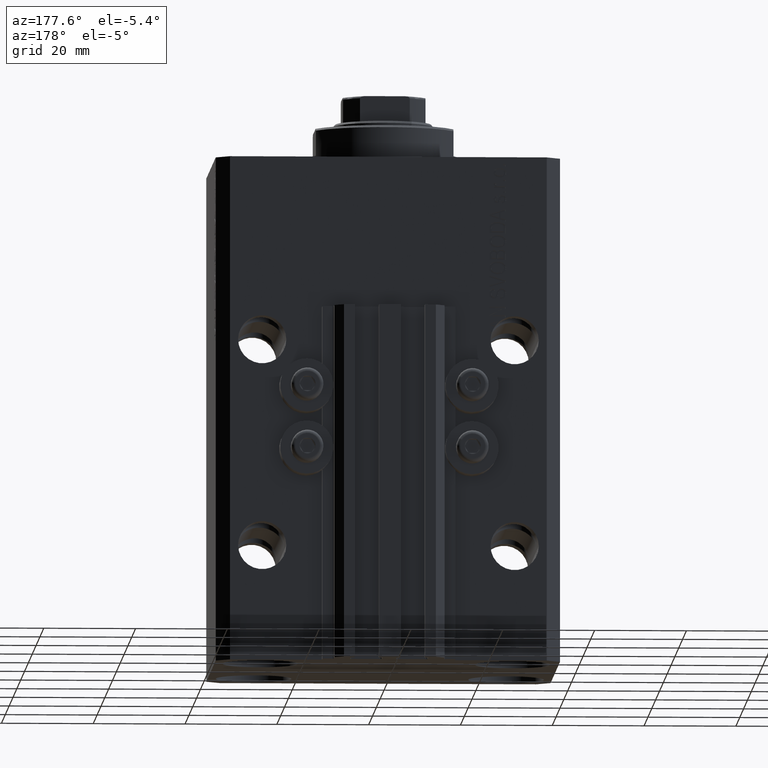
[diagram: clean part render]
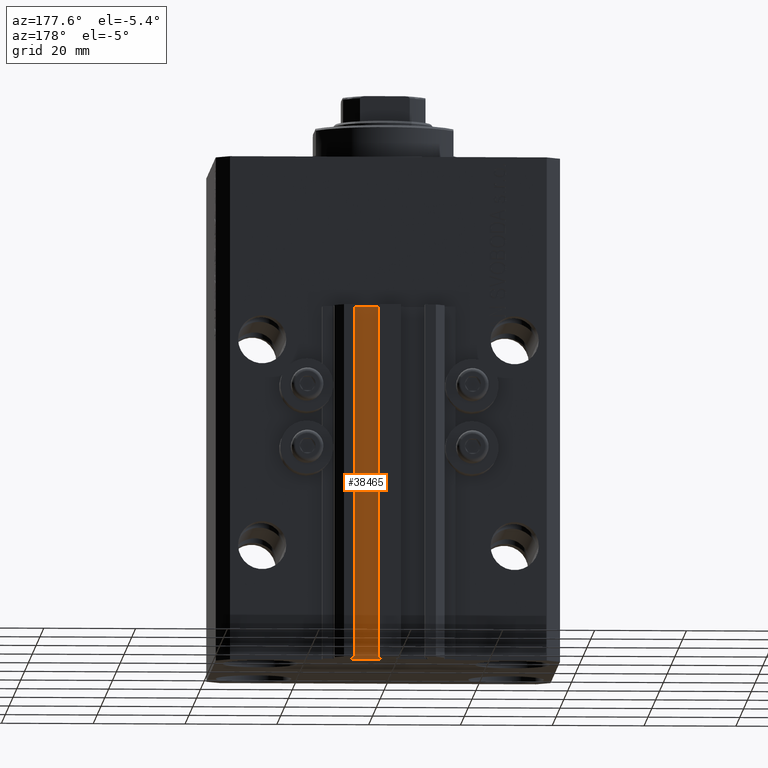
[diagram: same view with one face highlighted and labeled with its STEP entity id]
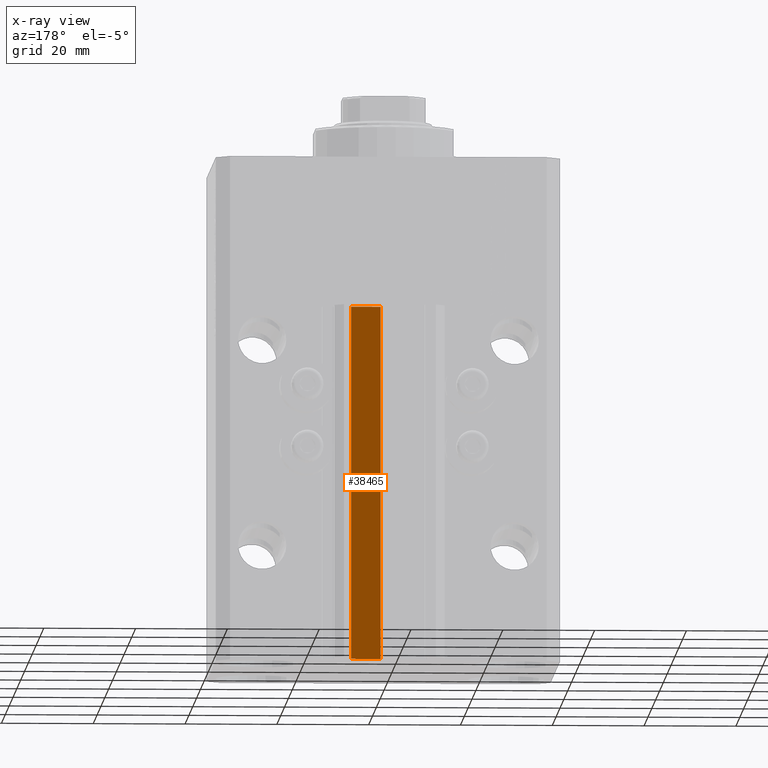
[diagram: x-ray of the same camera — body ghosted, the highlighted face saturated]
A machine part, auxiliary view. The second image highlights one B-rep face of the part: STEP entity #38465.
The next image is the same camera in x-ray: the body ghosted, the highlighted face saturated — about 0% of this face is hidden behind the body in this view.
In plain terms, the highlighted planar face has unit normal (-0, 1, 0).
Its self-contained STEP definition (entity closure, byte-faithful):
#92 = CARTESIAN_POINT ( 'NONE',  ( 8.199999999999999289, 29.50000000000000711, -110.0000000000000000 ) ) ;
#190 = ORIENTED_EDGE ( 'NONE', *, *, #28475, .F. ) ;
#1042 = CARTESIAN_POINT ( 'NONE',  ( 1.800000000000000933, 29.50000000000000000, -110.0000000000000000 ) ) ;
#4437 = CARTESIAN_POINT ( 'NONE',  ( 8.199999999999999289, 29.50000000000000711, -110.0000000000000000 ) ) ;
#5440 = LINE ( 'NONE', #22501, #34141 ) ;
#7524 = LINE ( 'NONE', #92, #14929 ) ;
#7820 = DIRECTION ( 'NONE',  ( -1.000000000000000000, -1.084202172485504828E-15, 0.000000000000000000 ) ) ;
#8803 = DIRECTION ( 'NONE',  ( 0.000000000000000000, 0.000000000000000000, 1.000000000000000000 ) ) ;
#9676 = LINE ( 'NONE', #42235, #12942 ) ;
#10141 = DIRECTION ( 'NONE',  ( 0.000000000000000000, 0.000000000000000000, 1.000000000000000000 ) ) ;
#11630 = DIRECTION ( 'NONE',  ( -1.084202172485504828E-15, 1.000000000000000000, 0.000000000000000000 ) ) ;
#12942 = VECTOR ( 'NONE', #10141, 1000.000000000000000 ) ;
#13241 = DIRECTION ( 'NONE',  ( -1.000000000000000000, -1.084202172485504828E-15, 0.000000000000000000 ) ) ;
#14929 = VECTOR ( 'NONE', #22122, 1000.000000000000000 ) ;
#17678 = EDGE_LOOP ( 'NONE', ( #190, #18604, #27295, #38772 ) ) ;
#18604 = ORIENTED_EDGE ( 'NONE', *, *, #45333, .F. ) ;
#22122 = DIRECTION ( 'NONE',  ( -1.000000000000000000, -1.084202172485504828E-15, 0.000000000000000000 ) ) ;
#22501 = CARTESIAN_POINT ( 'NONE',  ( 8.199999999999999289, 29.50000000000000711, -110.0000000000000000 ) ) ;
#26975 = VERTEX_POINT ( 'NONE', #33444 ) ;
#27295 = ORIENTED_EDGE ( 'NONE', *, *, #38637, .T. ) ;
#28475 = EDGE_CURVE ( 'NONE', #40034, #26975, #31456, .T. ) ;
#29051 = VERTEX_POINT ( 'NONE', #46799 ) ;
#31370 = VERTEX_POINT ( 'NONE', #1042 ) ;
#31456 = LINE ( 'NONE', #46044, #36493 ) ;
#32914 = EDGE_CURVE ( 'NONE', #31370, #26975, #9676, .T. ) ;
#33444 = CARTESIAN_POINT ( 'NONE',  ( 1.800000000000000933, 29.50000000000000000, -33.00000000000000000 ) ) ;
#34141 = VECTOR ( 'NONE', #8803, 1000.000000000000000 ) ;
#36493 = VECTOR ( 'NONE', #13241, 1000.000000000000000 ) ;
#38465 = ADVANCED_FACE ( 'NONE', ( #40610 ), #43727, .T. ) ;
#38637 = EDGE_CURVE ( 'NONE', #29051, #31370, #7524, .T. ) ;
#38662 = AXIS2_PLACEMENT_3D ( 'NONE', #4437, #11630, #7820 ) ;
#38772 = ORIENTED_EDGE ( 'NONE', *, *, #32914, .T. ) ;
#38884 = CARTESIAN_POINT ( 'NONE',  ( 8.199999999999999289, 29.50000000000000711, -33.00000000000000000 ) ) ;
#40034 = VERTEX_POINT ( 'NONE', #38884 ) ;
#40610 = FACE_OUTER_BOUND ( 'NONE', #17678, .T. ) ;
#42235 = CARTESIAN_POINT ( 'NONE',  ( 1.800000000000000933, 29.50000000000000000, -110.0000000000000000 ) ) ;
#43727 = PLANE ( 'NONE',  #38662 ) ;
#45333 = EDGE_CURVE ( 'NONE', #29051, #40034, #5440, .T. ) ;
#46044 = CARTESIAN_POINT ( 'NONE',  ( 8.199999999999999289, 29.50000000000000711, -33.00000000000000000 ) ) ;
#46799 = CARTESIAN_POINT ( 'NONE',  ( 8.199999999999999289, 29.50000000000000711, -110.0000000000000000 ) ) ;